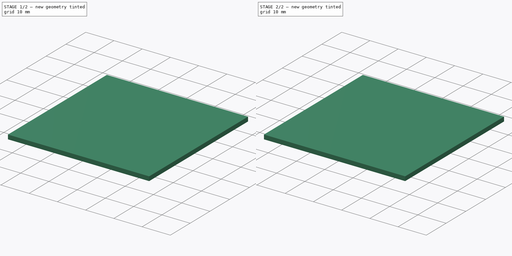
[diagram: build sequence overview — one tinted view per stage of 2, left to right]
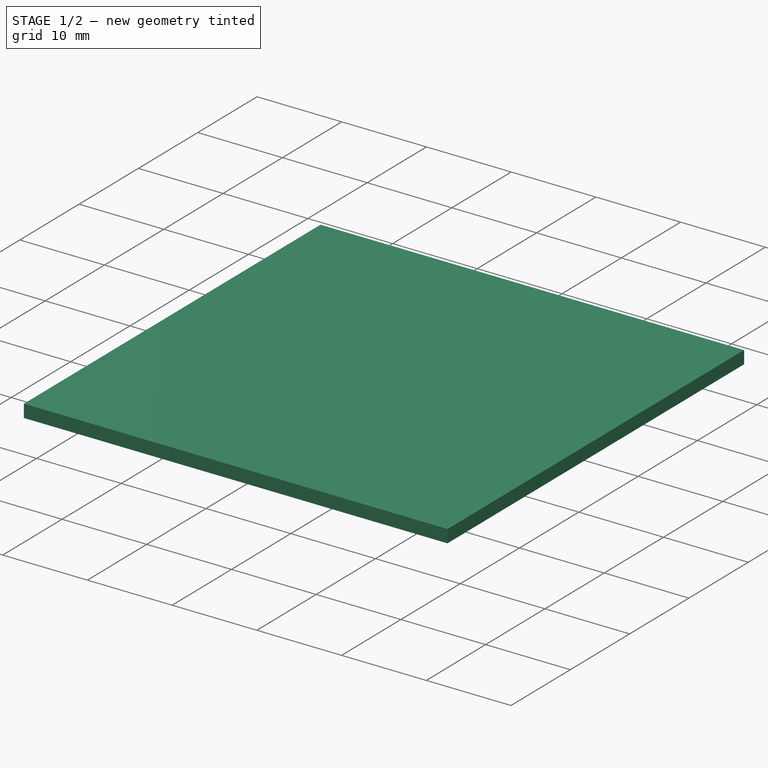
[diagram: stage 1 of 2 — iso view after this stage's code; geometry added in this stage tinted green]
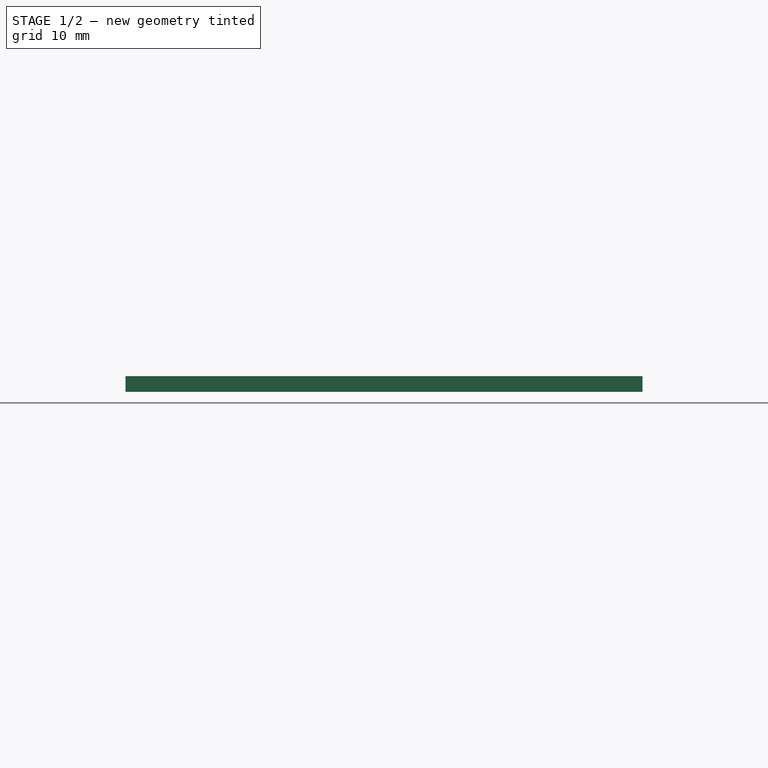
[diagram: stage 1 of 2 — front view after this stage's code; geometry added in this stage tinted green]
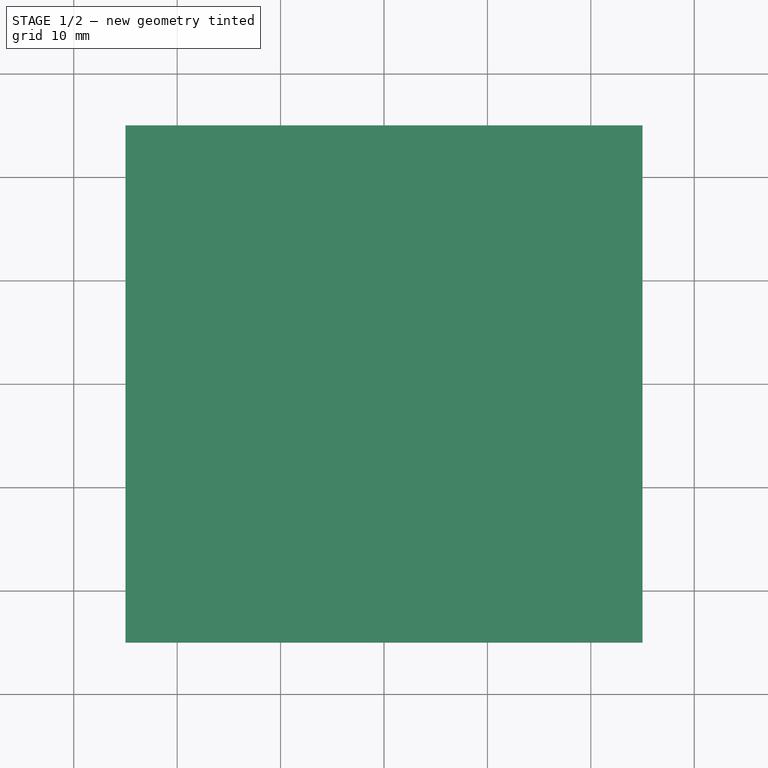
[diagram: stage 1 of 2 — top view after this stage's code; geometry added in this stage tinted green]
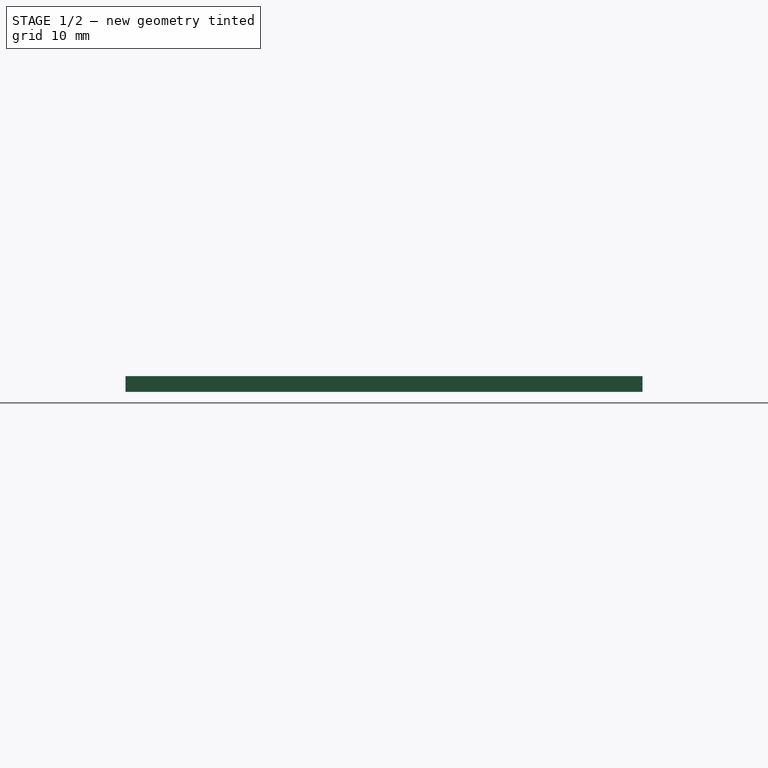
[diagram: stage 1 of 2 — right view after this stage's code; geometry added in this stage tinted green]
FCSTD DOCUMENT  (FreeCAD 0.21R33771 (Git))
Label: test_patch_antenna
License: All rights reserved
LicenseURL: http://en.wikipedia.org/wiki/All_rights_reserved
objects: Sketcher::SketchObject×2, PartDesign::Pad×2, PartDesign::Body×1
note: 7 computed .brp shape members not serialized (recipe doc carries the construction recipe); baked Part::Feature solids carry a one-line shape summary decoded from their .brp

FEATURE [Sketcher::SketchObject] Sketch
  FullyConstrained = true
  MapMode = 5
  Support = -> [XY_Plane]
  sketch-geometry (5):
    g0: LineSegment StartX=-25 StartY=-25 StartZ=0 EndX=-25 EndY=25 EndZ=0
    g1: LineSegment StartX=-25 StartY=25 StartZ=0 EndX=25 EndY=25 EndZ=0
    g2: LineSegment StartX=25 StartY=25 StartZ=0 EndX=25 EndY=-25 EndZ=0
    g3: LineSegment StartX=25 StartY=-25 StartZ=0 EndX=-25 EndY=-25 EndZ=0
    g4: GeomPoint X=0 Y=0 Z=0
  constraints (12):
    c: Coincident(g0,g1)
    c: Coincident(g1,g2)
    c: Coincident(g2,g3)
    c: Coincident(g3,g0)
    c: Horizontal(g1)
    c: Horizontal(g3)
    c: Vertical(g0)
    c: Vertical(g2)
    c: Symmetric(g1,g0,g4)
    c: Coincident(g4,g-1)
    c: DistanceY(g2,g2) = 50
    c: DistanceX(g1,g1) = 50
FEATURE [PartDesign::Pad] Pad
  Direction = (0,0,1)
  Length = 1.524
  Length2 = 10
  Profile = -> Sketch
  ReferenceAxis = -> Sketch [N_Axis]
  Type = 0
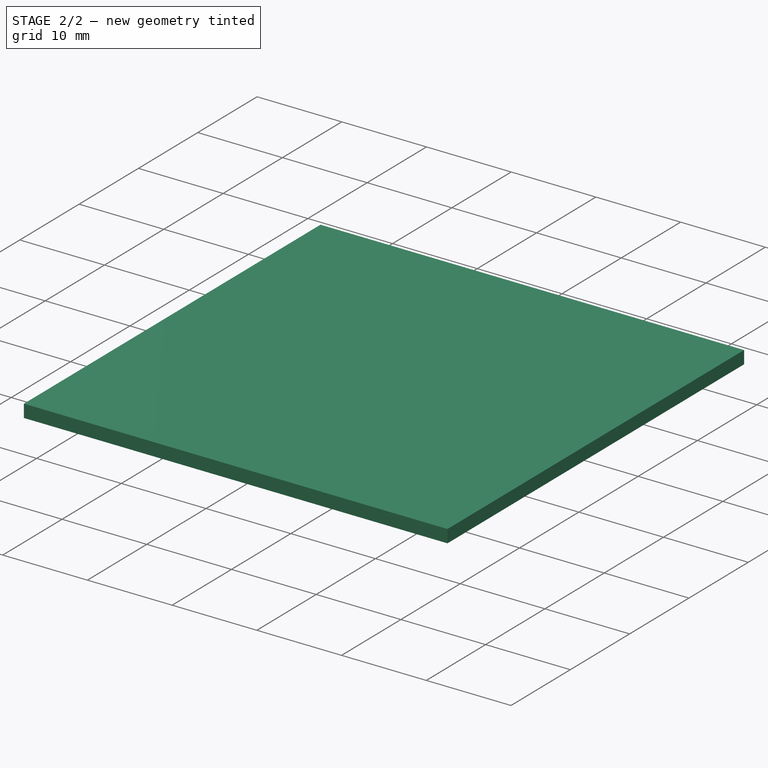
[diagram: stage 2 of 2 — iso view after this stage's code; geometry added in this stage tinted green]
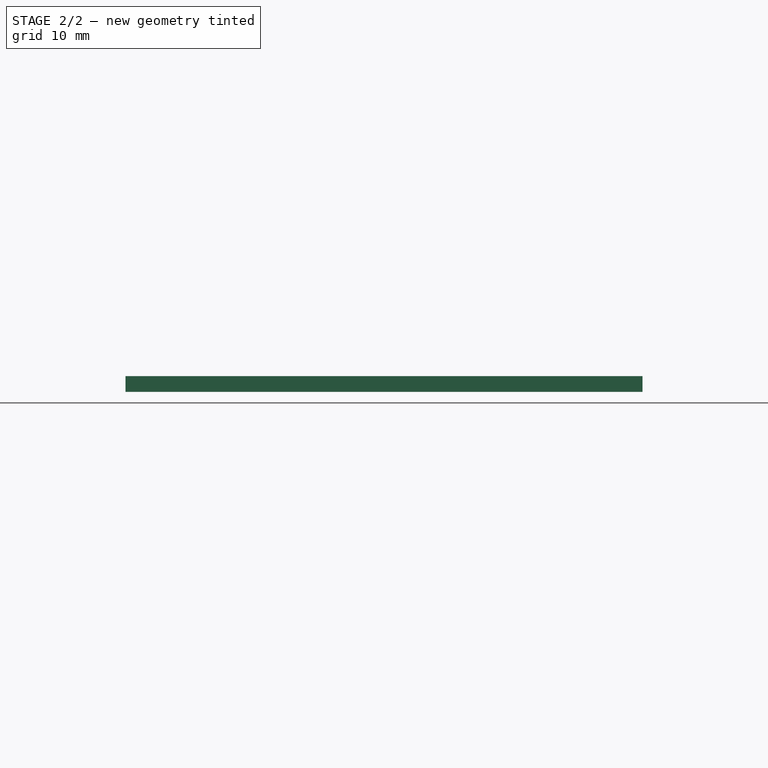
[diagram: stage 2 of 2 — front view after this stage's code; geometry added in this stage tinted green]
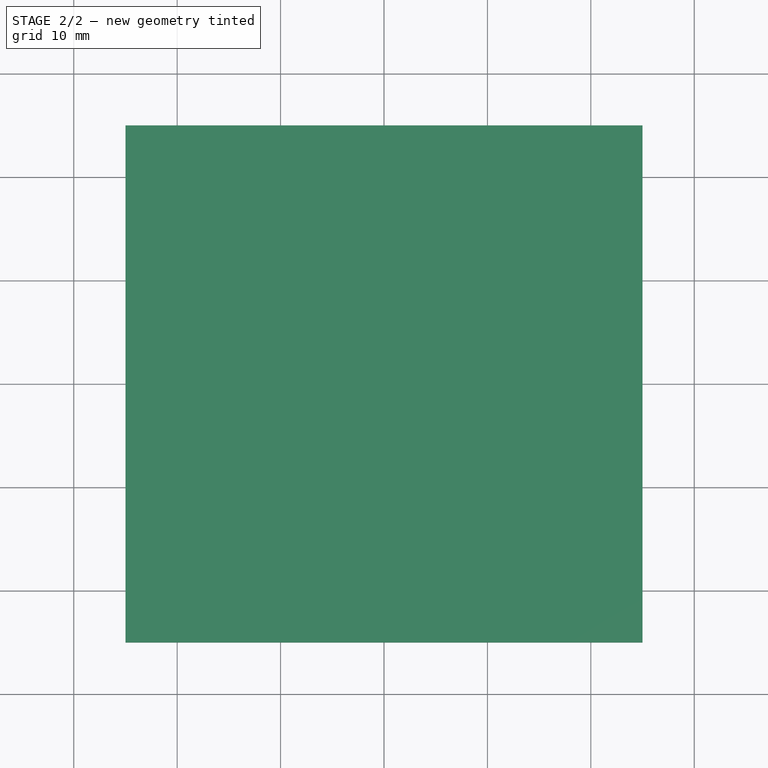
[diagram: stage 2 of 2 — top view after this stage's code; geometry added in this stage tinted green]
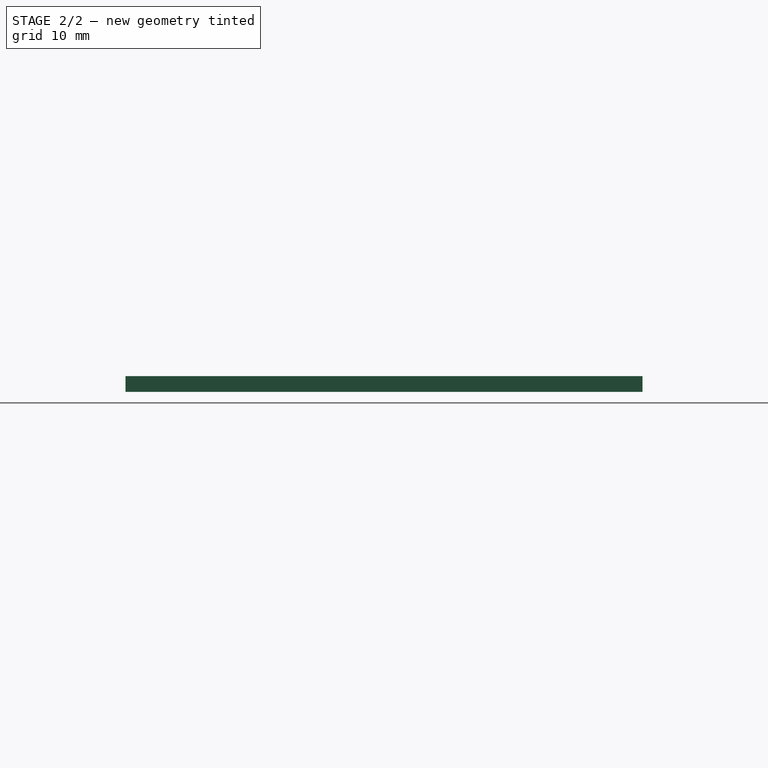
[diagram: stage 2 of 2 — right view after this stage's code; geometry added in this stage tinted green]
FEATURE [Sketcher::SketchObject] Sketch001
  ExternalGeometry = -> [Pad]
  FullyConstrained = true
  MapMode = 5
  Placement = pos=(0,0,1.524) rot=(0,0,1;0rad)
  Support = -> [Pad]
  sketch-geometry (12):
    g0: LineSegment StartX=25 StartY=1.5 StartZ=0 EndX=6.75 EndY=1.5 EndZ=0
    g1: LineSegment StartX=6.75 StartY=1.5 StartZ=0 EndX=6.75 EndY=5.5 EndZ=0
    g2: LineSegment StartX=6.75 StartY=5.5 StartZ=0 EndX=14.75 EndY=5.5 EndZ=0
    g3: LineSegment StartX=14.75 StartY=5.5 StartZ=0 EndX=14.75 EndY=14.75 EndZ=0
    g4: LineSegment StartX=14.75 StartY=14.75 StartZ=0 EndX=-14.75 EndY=14.75 EndZ=0
    g5: LineSegment StartX=-14.75 StartY=14.75 StartZ=0 EndX=-14.75 EndY=-14.75 EndZ=0
    g6: LineSegment StartX=-14.75 StartY=-14.75 StartZ=0 EndX=14.75 EndY=-14.75 EndZ=0
    g7: LineSegment StartX=14.75 StartY=-14.75 StartZ=0 EndX=14.75 EndY=-5.5 EndZ=0
    g8: LineSegment StartX=14.75 StartY=-5.5 StartZ=0 EndX=6.75 EndY=-5.5 EndZ=0
    g9: LineSegment StartX=6.75 StartY=-5.5 StartZ=0 EndX=6.75 EndY=-1.5 EndZ=0
    g10: LineSegment StartX=6.75 StartY=-1.5 StartZ=0 EndX=25 EndY=-1.5 EndZ=0
    g11: LineSegment StartX=25 StartY=1.5 StartZ=0 EndX=25 EndY=-1.5 EndZ=0
  constraints (32):
    c: PointOnObject(g0,g-3)
    c: Horizontal(g0)
    c: Coincident(g1,g0)
    c: Vertical(g1)
    c: Coincident(g2,g1)
    c: Horizontal(g2)
    c: Coincident(g3,g2)
    c: Vertical(g3)
    c: Coincident(g4,g3)
    c: Coincident(g5,g4)
    c: Coincident(g6,g5)
    c: Horizontal(g6)
    c: Coincident(g7,g6)
    c: Vertical(g7)
    c: Coincident(g8,g7)
    c: Horizontal(g8)
    c: Coincident(g9,g8)
    c: Vertical(g9)
    c: Coincident(g10,g9)
    c: Horizontal(g10)
    c: Coincident(g11,g0)
    c: Coincident(g11,g10)
    c: DistanceY(g5,g5) = 29.5
    c: DistanceX(g4,g4) = 29.5
    c: Symmetric(g4,g5,g-1)
    c: Symmetric(g7,g2,g-1)
    c: Symmetric(g0,g10,g-1)
    c: Equal(g8,g2)
    c: DistanceY(g9,g0) = 3
    c: DistanceX(g2,g2) = 8
    c: Symmetric(g3,g4,g-2)
    c: DistanceY(g0,g1) = 4
FEATURE [PartDesign::Pad] Pad001
  BaseFeature = -> Pad
  Direction = (0,0,1)
  Length = 1.524
  Length2 = 10
  Profile = -> Sketch001
  ReferenceAxis = -> Sketch001 [N_Axis]
  Reversed = true
  Type = 0
FEATURE [PartDesign::Body] Body
  Group = -> [Sketch,Pad,Sketch001,Pad001]
  Origin = -> Origin
  Tip = -> Pad001
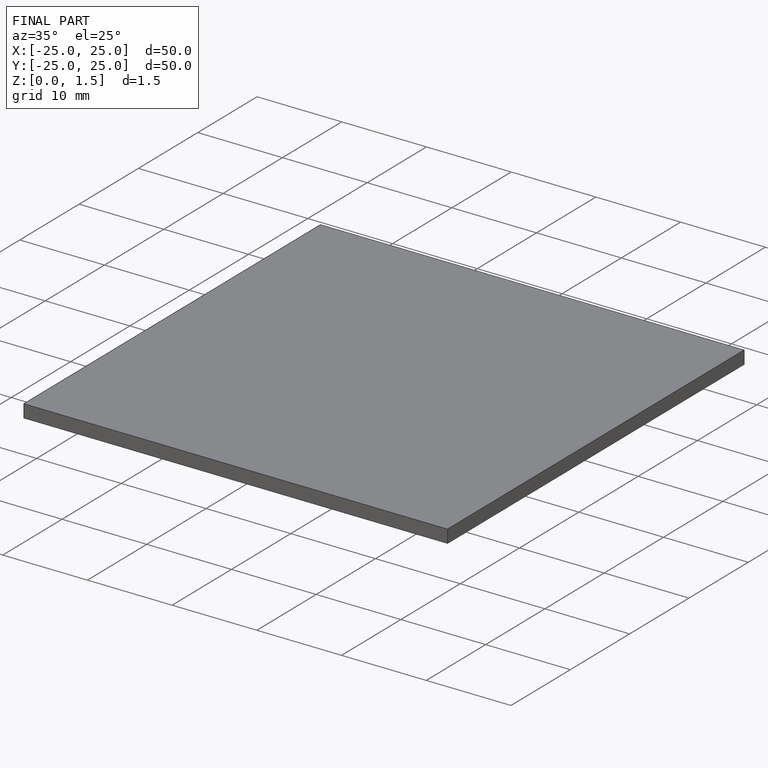
[diagram: finished part — iso view with bounding-box wireframe]
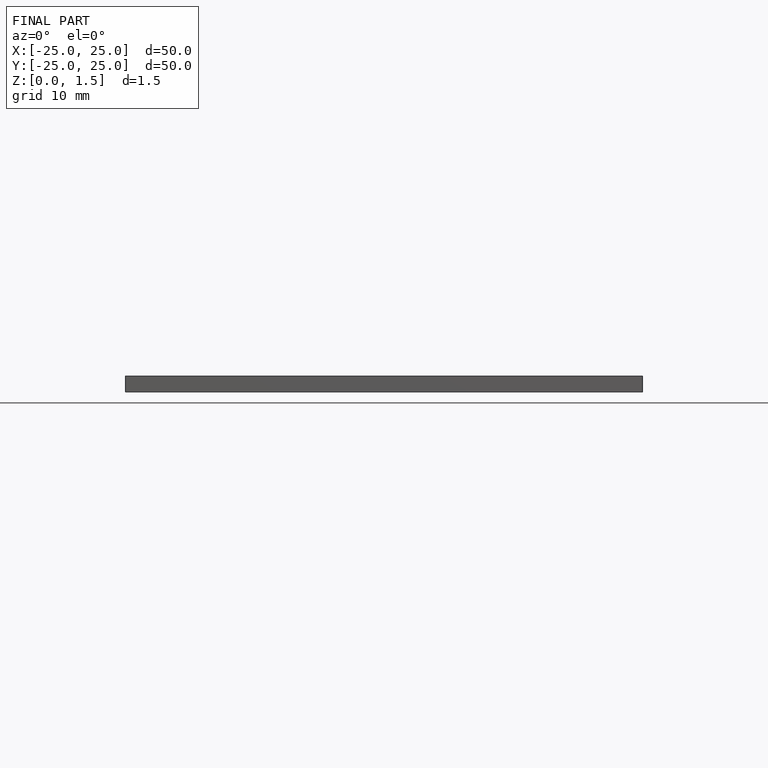
[diagram: finished part — front view with bounding-box wireframe]
